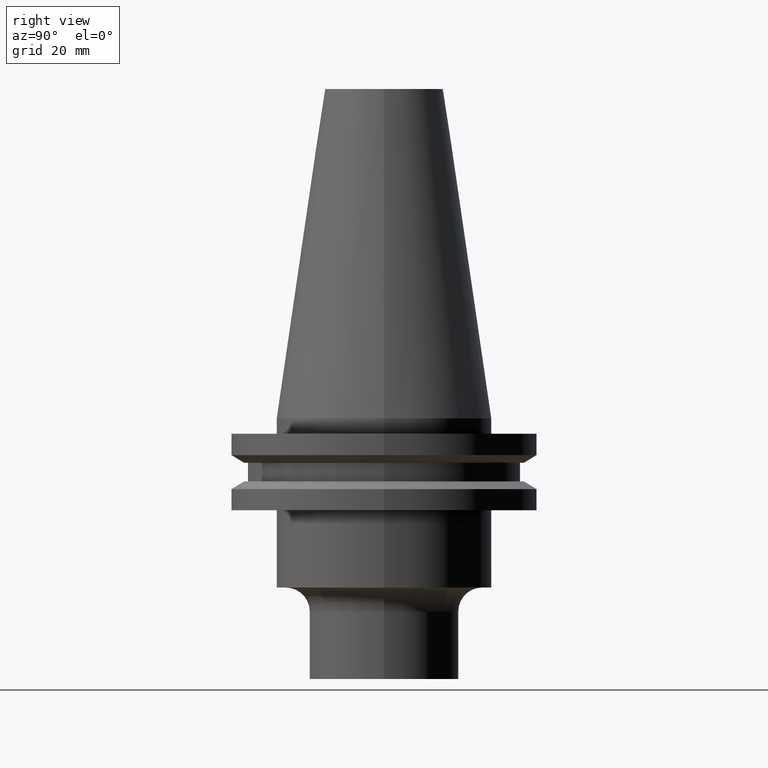
[diagram: clean part render]
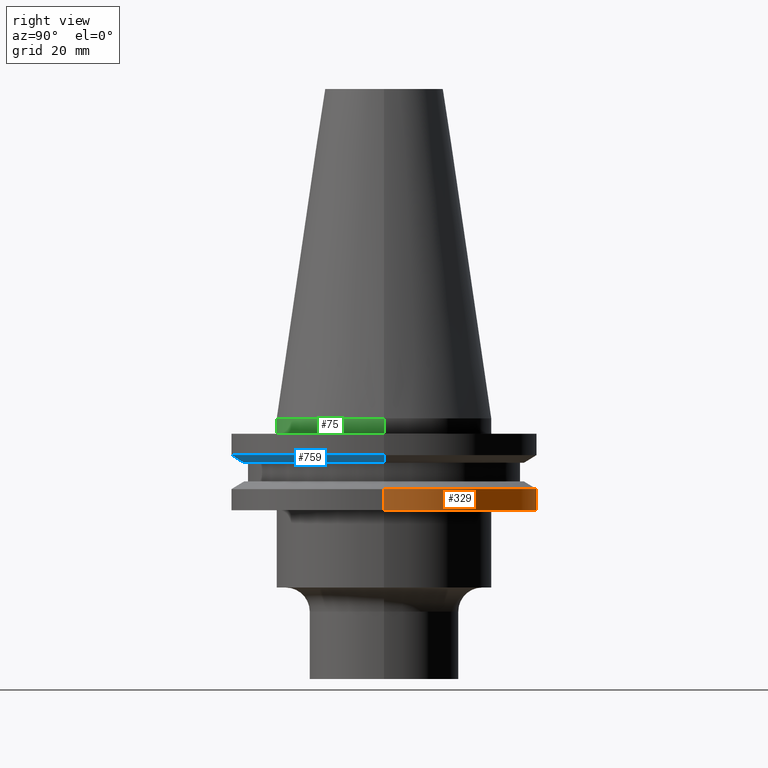
[diagram: same view with three faces highlighted in distinct colors, each labeled with its STEP entity id]
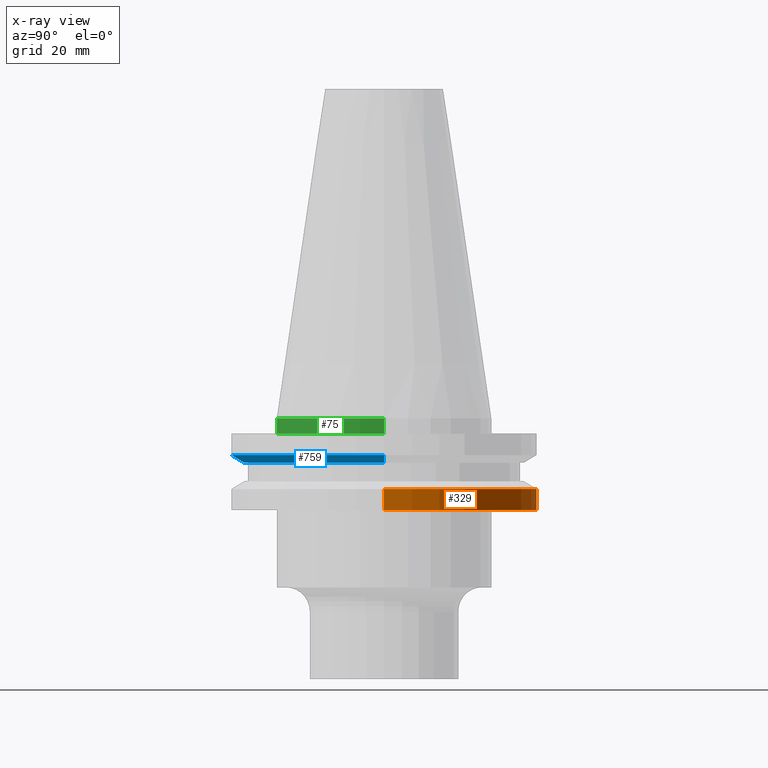
[diagram: x-ray of the same camera — body ghosted, the three highlighted faces saturated]
A machine part, right view with three faces highlighted in distinct colors.
The next image is the same camera in x-ray (body ghosted, the three faces saturated) — at least one of them is partly hidden behind the body in this view.
Their STEP definitions:

[orange] entity #329 — the highlighted cylindrical surface (partial cylindrical patch) has radius 31.75 mm, axis along (-0, -0, 1).
#4 = VERTEX_POINT ( 'NONE', #196 ) ;
#12 = DIRECTION ( 'NONE',  ( 1.000000000000000000, 0.000000000000000000, 0.000000000000000000 ) ) ;
#13 = VERTEX_POINT ( 'NONE', #146 ) ;
#16 = AXIS2_PLACEMENT_3D ( 'NONE', #524, #252, #309 ) ;
#23 = CARTESIAN_POINT ( 'NONE',  ( -31.75000000000000000, 3.888253587292846476E-15, -14.65472339340266572 ) ) ;
#58 = VERTEX_POINT ( 'NONE', #699 ) ;
#68 = CYLINDRICAL_SURFACE ( 'NONE', #266, 31.75000000000000000 ) ;
#76 = VECTOR ( 'NONE', #257, 1000.000000000000000 ) ;
#134 = CARTESIAN_POINT ( 'NONE',  ( 31.75000000000000000, 0.000000000000000000, 68.25000000000000000 ) ) ;
#146 = CARTESIAN_POINT ( 'NONE',  ( 31.75000000000000000, 0.000000000000000000, -14.65472339340266572 ) ) ;
#195 = EDGE_CURVE ( 'NONE', #58, #472, #522, .T. ) ;
#196 = CARTESIAN_POINT ( 'NONE',  ( 31.74999999999999289, 0.000000000000000000, -19.04999999999999716 ) ) ;
#222 = EDGE_LOOP ( 'NONE', ( #614, #442, #280, #283 ) ) ;
#225 = DIRECTION ( 'NONE',  ( -0.000000000000000000, -0.000000000000000000, 1.000000000000000000 ) ) ;
#252 = DIRECTION ( 'NONE',  ( -0.000000000000000000, -0.000000000000000000, 1.000000000000000000 ) ) ;
#257 = DIRECTION ( 'NONE',  ( -0.000000000000000000, -0.000000000000000000, 1.000000000000000000 ) ) ;
#266 = AXIS2_PLACEMENT_3D ( 'NONE', #731, #370, #12 ) ;
#280 = ORIENTED_EDGE ( 'NONE', *, *, #437, .F. ) ;
#283 = ORIENTED_EDGE ( 'NONE', *, *, #425, .F. ) ;
#309 = DIRECTION ( 'NONE',  ( 1.000000000000000000, 0.000000000000000000, 0.000000000000000000 ) ) ;
#329 = ADVANCED_FACE ( 'NONE', ( #423 ), #68, .T. ) ;
#347 = CARTESIAN_POINT ( 'NONE',  ( -31.75000000000000000, 3.888253587292846476E-15, 68.25000000000000000 ) ) ;
#370 = DIRECTION ( 'NONE',  ( -0.000000000000000000, -0.000000000000000000, 1.000000000000000000 ) ) ;
#379 = DIRECTION ( 'NONE',  ( 1.000000000000000000, 0.000000000000000000, 0.000000000000000000 ) ) ;
#423 = FACE_OUTER_BOUND ( 'NONE', #222, .T. ) ;
#425 = EDGE_CURVE ( 'NONE', #4, #13, #685, .T. ) ;
#437 = EDGE_CURVE ( 'NONE', #13, #472, #666, .T. ) ;
#440 = CARTESIAN_POINT ( 'NONE',  ( 0.000000000000000000, 0.000000000000000000, -14.65472339340266572 ) ) ;
#442 = ORIENTED_EDGE ( 'NONE', *, *, #195, .T. ) ;
#452 = DIRECTION ( 'NONE',  ( -0.000000000000000000, -0.000000000000000000, 1.000000000000000000 ) ) ;
#468 = AXIS2_PLACEMENT_3D ( 'NONE', #440, #452, #379 ) ;
#472 = VERTEX_POINT ( 'NONE', #23 ) ;
#522 = LINE ( 'NONE', #347, #767 ) ;
#524 = CARTESIAN_POINT ( 'NONE',  ( 0.000000000000000000, 0.000000000000000000, -19.04999999999999716 ) ) ;
#614 = ORIENTED_EDGE ( 'NONE', *, *, #704, .T. ) ;
#666 = CIRCLE ( 'NONE', #468, 31.75000000000000000 ) ;
#685 = LINE ( 'NONE', #134, #76 ) ;
#699 = CARTESIAN_POINT ( 'NONE',  ( -31.74999999999999289, 3.888253587292845687E-15, -19.04999999999999716 ) ) ;
#704 = EDGE_CURVE ( 'NONE', #4, #58, #769, .T. ) ;
#731 = CARTESIAN_POINT ( 'NONE',  ( 0.000000000000000000, 0.000000000000000000, 68.25000000000000000 ) ) ;
#767 = VECTOR ( 'NONE', #225, 1000.000000000000000 ) ;
#769 = CIRCLE ( 'NONE', #16, 31.74999999999999289 ) ;

[blue] entity #759 — the highlighted conical surface has half-angle 60 deg.
#15 = CIRCLE ( 'NONE', #741, 31.75000000000000000 ) ;
#26 = VECTOR ( 'NONE', #454, 1000.000000000000000 ) ;
#55 = DIRECTION ( 'NONE',  ( -0.000000000000000000, -0.000000000000000000, 1.000000000000000000 ) ) ;
#109 = CIRCLE ( 'NONE', #700, 28.97919780457007732 ) ;
#117 = DIRECTION ( 'NONE',  ( -0.8660254037844389297, 1.060575238724907285E-16, 0.4999999999999995004 ) ) ;
#144 = VERTEX_POINT ( 'NONE', #334 ) ;
#181 = CARTESIAN_POINT ( 'NONE',  ( -28.97919780457007732, 3.548928183322474856E-15, -9.205000000000005400 ) ) ;
#183 = EDGE_LOOP ( 'NONE', ( #556, #272, #226, #207 ) ) ;
#207 = ORIENTED_EDGE ( 'NONE', *, *, #270, .F. ) ;
#226 = ORIENTED_EDGE ( 'NONE', *, *, #416, .T. ) ;
#237 = DIRECTION ( 'NONE',  ( 1.000000000000000000, 0.000000000000000000, 0.000000000000000000 ) ) ;
#270 = EDGE_CURVE ( 'NONE', #311, #494, #15, .T. ) ;
#272 = ORIENTED_EDGE ( 'NONE', *, *, #382, .T. ) ;
#293 = CARTESIAN_POINT ( 'NONE',  ( 0.000000000000000000, 0.000000000000000000, -9.205000000000005400 ) ) ;
#311 = VERTEX_POINT ( 'NONE', #366 ) ;
#334 = CARTESIAN_POINT ( 'NONE',  ( 28.97919780457007732, 0.000000000000000000, -9.205000000000005400 ) ) ;
#357 = FACE_OUTER_BOUND ( 'NONE', #183, .T. ) ;
#366 = CARTESIAN_POINT ( 'NONE',  ( -31.75000000000000000, 3.888253587292846476E-15, -7.605276606597335842 ) ) ;
#382 = EDGE_CURVE ( 'NONE', #642, #144, #109, .T. ) ;
#389 = DIRECTION ( 'NONE',  ( -0.000000000000000000, -0.000000000000000000, 1.000000000000000000 ) ) ;
#416 = EDGE_CURVE ( 'NONE', #144, #494, #559, .T. ) ;
#422 = DIRECTION ( 'NONE',  ( 1.000000000000000000, 0.000000000000000000, 0.000000000000000000 ) ) ;
#448 = CARTESIAN_POINT ( 'NONE',  ( 31.75000000000000000, 0.000000000000000000, -7.605276606597335842 ) ) ;
#454 = DIRECTION ( 'NONE',  ( 0.8660254037844389297, 0.000000000000000000, 0.4999999999999995004 ) ) ;
#458 = VECTOR ( 'NONE', #117, 1000.000000000000000 ) ;
#494 = VERTEX_POINT ( 'NONE', #448 ) ;
#553 = CARTESIAN_POINT ( 'NONE',  ( 0.000000000000000000, 0.000000000000000000, -9.205000000000005400 ) ) ;
#556 = ORIENTED_EDGE ( 'NONE', *, *, #763, .F. ) ;
#559 = LINE ( 'NONE', #633, #26 ) ;
#632 = AXIS2_PLACEMENT_3D ( 'NONE', #293, #55, #422 ) ;
#633 = CARTESIAN_POINT ( 'NONE',  ( 28.97919780457007732, 0.000000000000000000, -9.205000000000005400 ) ) ;
#642 = VERTEX_POINT ( 'NONE', #648 ) ;
#648 = CARTESIAN_POINT ( 'NONE',  ( -28.97919780457007732, 3.718590885307660666E-15, -9.205000000000005400 ) ) ;
#677 = DIRECTION ( 'NONE',  ( 1.000000000000000000, 0.000000000000000000, 0.000000000000000000 ) ) ;
#691 = CONICAL_SURFACE ( 'NONE', #632, 28.97919780457007732, 1.047197551196598297 ) ;
#700 = AXIS2_PLACEMENT_3D ( 'NONE', #553, #389, #677 ) ;
#717 = LINE ( 'NONE', #181, #458 ) ;
#721 = CARTESIAN_POINT ( 'NONE',  ( 0.000000000000000000, 0.000000000000000000, -7.605276606597335842 ) ) ;
#741 = AXIS2_PLACEMENT_3D ( 'NONE', #721, #776, #237 ) ;
#759 = ADVANCED_FACE ( 'NONE', ( #357 ), #691, .T. ) ;
#763 = EDGE_CURVE ( 'NONE', #642, #311, #717, .T. ) ;
#776 = DIRECTION ( 'NONE',  ( -0.000000000000000000, -0.000000000000000000, 1.000000000000000000 ) ) ;

[green] entity #75 — the highlighted cylindrical surface (partial cylindrical patch) has radius 22.225 mm, axis along (-0, -0, 1).
#3 = CARTESIAN_POINT ( 'NONE',  ( 22.22500000000000142, 2.721777511104992849E-15, 0.000000000000000000 ) ) ;
#7 = VERTEX_POINT ( 'NONE', #626 ) ;
#14 = AXIS2_PLACEMENT_3D ( 'NONE', #509, #737, #748 ) ;
#32 = ORIENTED_EDGE ( 'NONE', *, *, #126, .F. ) ;
#36 = CYLINDRICAL_SURFACE ( 'NONE', #336, 22.22500000000000142 ) ;
#45 = EDGE_CURVE ( 'NONE', #7, #715, #228, .T. ) ;
#75 = ADVANCED_FACE ( 'NONE', ( #471 ), #36, .T. ) ;
#126 = EDGE_CURVE ( 'NONE', #129, #236, #276, .T. ) ;
#129 = VERTEX_POINT ( 'NONE', #392 ) ;
#191 = CARTESIAN_POINT ( 'NONE',  ( 22.22500000000000142, 0.000000000000000000, -3.174999999999997158 ) ) ;
#228 = CIRCLE ( 'NONE', #14, 22.22500000000000142 ) ;
#236 = VERTEX_POINT ( 'NONE', #3 ) ;
#243 = ORIENTED_EDGE ( 'NONE', *, *, #635, .F. ) ;
#276 = CIRCLE ( 'NONE', #374, 22.22500000000000142 ) ;
#294 = CARTESIAN_POINT ( 'NONE',  ( 0.000000000000000000, 0.000000000000000000, 68.25000000000000000 ) ) ;
#336 = AXIS2_PLACEMENT_3D ( 'NONE', #294, #646, #401 ) ;
#374 = AXIS2_PLACEMENT_3D ( 'NONE', #771, #408, #519 ) ;
#377 = VECTOR ( 'NONE', #709, 1000.000000000000000 ) ;
#392 = CARTESIAN_POINT ( 'NONE',  ( -22.22500000000000142, 0.000000000000000000, 0.000000000000000000 ) ) ;
#393 = LINE ( 'NONE', #761, #377 ) ;
#401 = DIRECTION ( 'NONE',  ( 1.000000000000000000, 0.000000000000000000, 0.000000000000000000 ) ) ;
#408 = DIRECTION ( 'NONE',  ( -0.000000000000000000, -0.000000000000000000, 1.000000000000000000 ) ) ;
#424 = ORIENTED_EDGE ( 'NONE', *, *, #728, .T. ) ;
#471 = FACE_OUTER_BOUND ( 'NONE', #520, .T. ) ;
#509 = CARTESIAN_POINT ( 'NONE',  ( 0.000000000000000000, 0.000000000000000000, -3.174999999999997158 ) ) ;
#519 = DIRECTION ( 'NONE',  ( 1.000000000000000000, 0.000000000000000000, 0.000000000000000000 ) ) ;
#520 = EDGE_LOOP ( 'NONE', ( #243, #590, #424, #32 ) ) ;
#528 = VECTOR ( 'NONE', #535, 1000.000000000000000 ) ;
#535 = DIRECTION ( 'NONE',  ( -0.000000000000000000, -0.000000000000000000, 1.000000000000000000 ) ) ;
#590 = ORIENTED_EDGE ( 'NONE', *, *, #45, .T. ) ;
#626 = CARTESIAN_POINT ( 'NONE',  ( -22.22500000000000142, 2.721777511104992849E-15, -3.174999999999997158 ) ) ;
#635 = EDGE_CURVE ( 'NONE', #7, #129, #393, .T. ) ;
#646 = DIRECTION ( 'NONE',  ( -0.000000000000000000, -0.000000000000000000, 1.000000000000000000 ) ) ;
#663 = LINE ( 'NONE', #775, #528 ) ;
#709 = DIRECTION ( 'NONE',  ( -0.000000000000000000, -0.000000000000000000, 1.000000000000000000 ) ) ;
#715 = VERTEX_POINT ( 'NONE', #191 ) ;
#728 = EDGE_CURVE ( 'NONE', #715, #236, #663, .T. ) ;
#737 = DIRECTION ( 'NONE',  ( -0.000000000000000000, -0.000000000000000000, 1.000000000000000000 ) ) ;
#748 = DIRECTION ( 'NONE',  ( 1.000000000000000000, 0.000000000000000000, 0.000000000000000000 ) ) ;
#761 = CARTESIAN_POINT ( 'NONE',  ( -22.22500000000000142, 2.721777511104992849E-15, 68.25000000000000000 ) ) ;
#771 = CARTESIAN_POINT ( 'NONE',  ( 0.000000000000000000, 0.000000000000000000, 0.000000000000000000 ) ) ;
#775 = CARTESIAN_POINT ( 'NONE',  ( 22.22500000000000142, 0.000000000000000000, 68.25000000000000000 ) ) ;